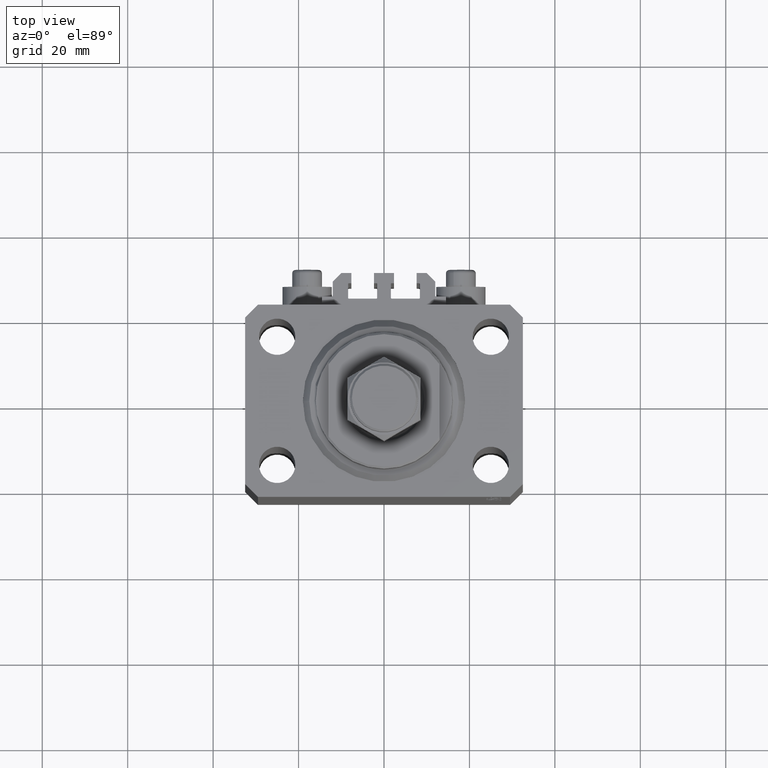
[diagram: clean part render]
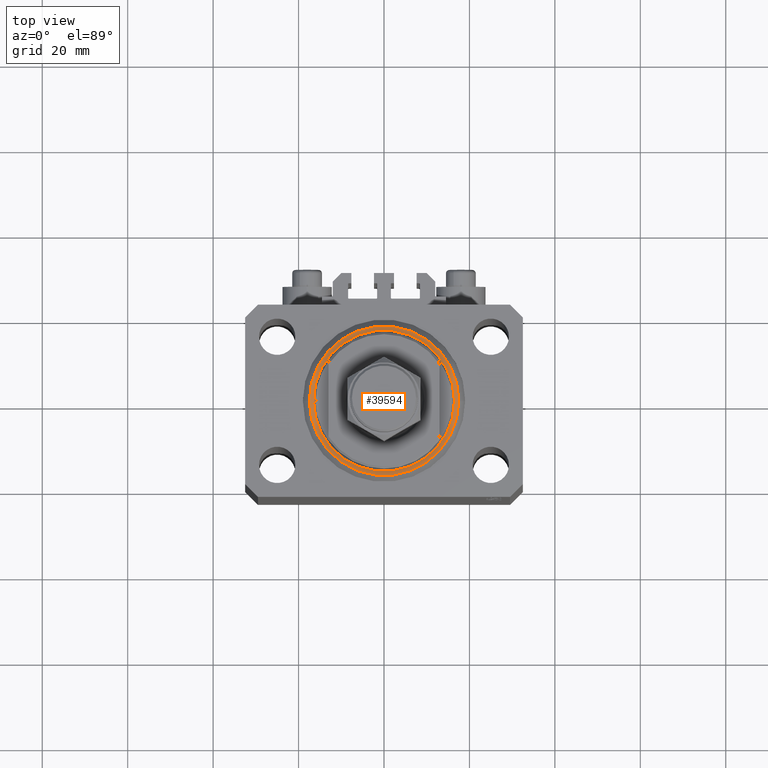
[diagram: same view with one face highlighted and labeled with its STEP entity id]
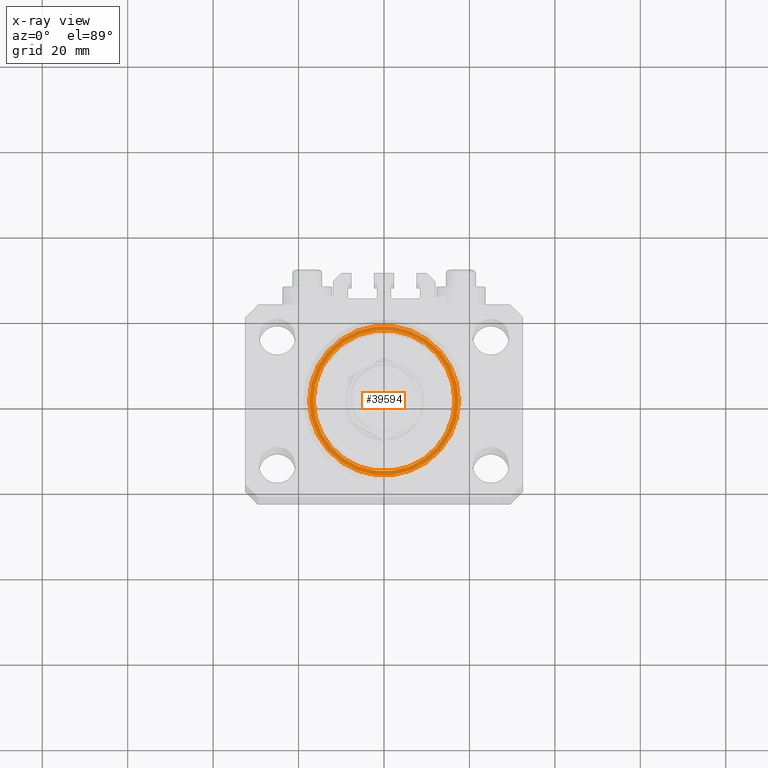
[diagram: x-ray of the same camera — body ghosted, the highlighted face saturated]
A machine part, top view. The second image highlights one B-rep face of the part: STEP entity #39594.
The next image is the same camera in x-ray: the body ghosted, the highlighted face saturated — about 0% of this face is hidden behind the body in this view.
In plain terms, the highlighted planar face has unit normal (0, 0, -1).
Its self-contained STEP definition (entity closure, byte-faithful):
#516 = DIRECTION ( 'NONE',  ( 1.000000000000000000, 0.000000000000000000, 0.000000000000000000 ) ) ;
#1203 = CIRCLE ( 'NONE', #27284, 16.50000000000000000 ) ;
#2895 = CARTESIAN_POINT ( 'NONE',  ( -17.49999999999999645, 2.234980408443919215E-15, 0.000000000000000000 ) ) ;
#5500 = CARTESIAN_POINT ( 'NONE',  ( 0.000000000000000000, 0.000000000000000000, 0.000000000000000000 ) ) ;
#6074 = DIRECTION ( 'NONE',  ( 1.000000000000000000, 0.000000000000000000, 0.000000000000000000 ) ) ;
#6667 = AXIS2_PLACEMENT_3D ( 'NONE', #46666, #27844, #6074 ) ;
#8700 = VERTEX_POINT ( 'NONE', #11142 ) ;
#9009 = ORIENTED_EDGE ( 'NONE', *, *, #45496, .T. ) ;
#9274 = AXIS2_PLACEMENT_3D ( 'NONE', #5500, #43856, #9952 ) ;
#9952 = DIRECTION ( 'NONE',  ( 1.000000000000000000, 0.000000000000000000, 0.000000000000000000 ) ) ;
#11142 = CARTESIAN_POINT ( 'NONE',  ( -16.50000000000000000, 2.020667218593133100E-15, 2.168404344971008868E-16 ) ) ;
#12048 = EDGE_CURVE ( 'NONE', #8700, #34521, #29034, .T. ) ;
#12445 = AXIS2_PLACEMENT_3D ( 'NONE', #43070, #19572, #516 ) ;
#12707 = VERTEX_POINT ( 'NONE', #2895 ) ;
#12892 = CARTESIAN_POINT ( 'NONE',  ( 0.000000000000000000, 0.000000000000000000, 0.000000000000000000 ) ) ;
#12911 = ORIENTED_EDGE ( 'NONE', *, *, #47634, .T. ) ;
#13201 = EDGE_LOOP ( 'NONE', ( #9009, #35290 ) ) ;
#13832 = AXIS2_PLACEMENT_3D ( 'NONE', #12892, #21064, #27989 ) ;
#19572 = DIRECTION ( 'NONE',  ( -0.000000000000000000, -0.000000000000000000, -1.000000000000000000 ) ) ;
#20148 = CARTESIAN_POINT ( 'NONE',  ( 0.000000000000000000, 0.000000000000000000, 0.000000000000000000 ) ) ;
#21064 = DIRECTION ( 'NONE',  ( 0.000000000000000000, 0.000000000000000000, 1.000000000000000000 ) ) ;
#25020 = PLANE ( 'NONE',  #13832 ) ;
#25775 = EDGE_LOOP ( 'NONE', ( #12911, #40448 ) ) ;
#26575 = EDGE_CURVE ( 'NONE', #12707, #35301, #27460, .T. ) ;
#27284 = AXIS2_PLACEMENT_3D ( 'NONE', #20148, #47554, #45902 ) ;
#27460 = CIRCLE ( 'NONE', #12445, 17.49999999999999645 ) ;
#27844 = DIRECTION ( 'NONE',  ( -0.000000000000000000, -0.000000000000000000, -1.000000000000000000 ) ) ;
#27989 = DIRECTION ( 'NONE',  ( 1.000000000000000000, 0.000000000000000000, -0.000000000000000000 ) ) ;
#28000 = CIRCLE ( 'NONE', #6667, 17.49999999999999645 ) ;
#29034 = CIRCLE ( 'NONE', #9274, 16.50000000000000000 ) ;
#34521 = VERTEX_POINT ( 'NONE', #35190 ) ;
#35190 = CARTESIAN_POINT ( 'NONE',  ( 16.50000000000000000, 0.000000000000000000, 2.168404344971008868E-16 ) ) ;
#35290 = ORIENTED_EDGE ( 'NONE', *, *, #26575, .T. ) ;
#35301 = VERTEX_POINT ( 'NONE', #45186 ) ;
#39594 = ADVANCED_FACE ( 'NONE', ( #43095, #47305 ), #25020, .F. ) ;
#40448 = ORIENTED_EDGE ( 'NONE', *, *, #12048, .T. ) ;
#43070 = CARTESIAN_POINT ( 'NONE',  ( 0.000000000000000000, 0.000000000000000000, 0.000000000000000000 ) ) ;
#43095 = FACE_BOUND ( 'NONE', #25775, .T. ) ;
#43856 = DIRECTION ( 'NONE',  ( 0.000000000000000000, 0.000000000000000000, 1.000000000000000000 ) ) ;
#45186 = CARTESIAN_POINT ( 'NONE',  ( 17.49999999999999645, 0.000000000000000000, 0.000000000000000000 ) ) ;
#45496 = EDGE_CURVE ( 'NONE', #35301, #12707, #28000, .T. ) ;
#45902 = DIRECTION ( 'NONE',  ( 1.000000000000000000, 0.000000000000000000, 0.000000000000000000 ) ) ;
#46666 = CARTESIAN_POINT ( 'NONE',  ( 0.000000000000000000, 0.000000000000000000, 0.000000000000000000 ) ) ;
#47305 = FACE_OUTER_BOUND ( 'NONE', #13201, .T. ) ;
#47554 = DIRECTION ( 'NONE',  ( 0.000000000000000000, 0.000000000000000000, 1.000000000000000000 ) ) ;
#47634 = EDGE_CURVE ( 'NONE', #34521, #8700, #1203, .T. ) ;